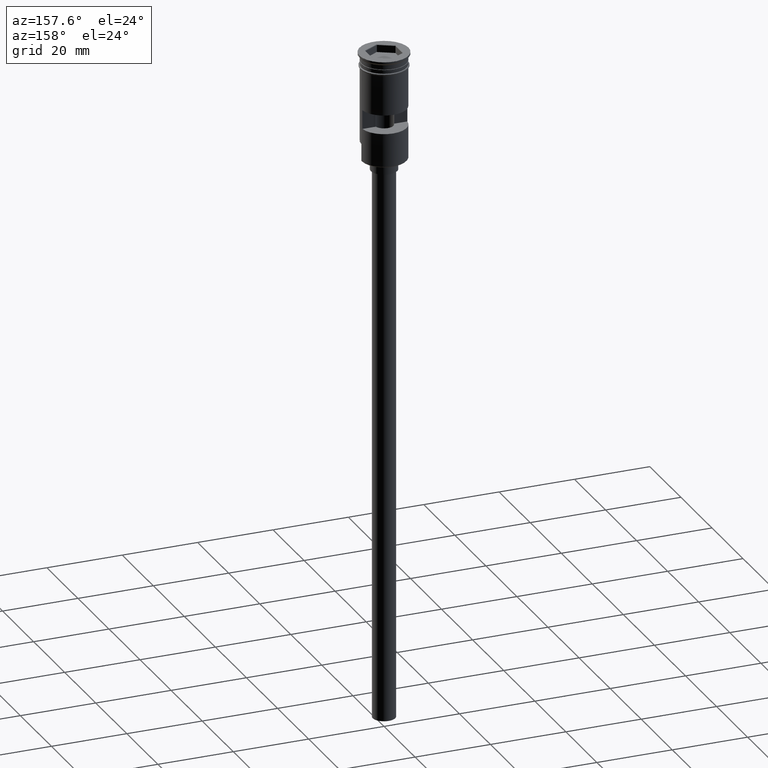
[diagram: clean part render]
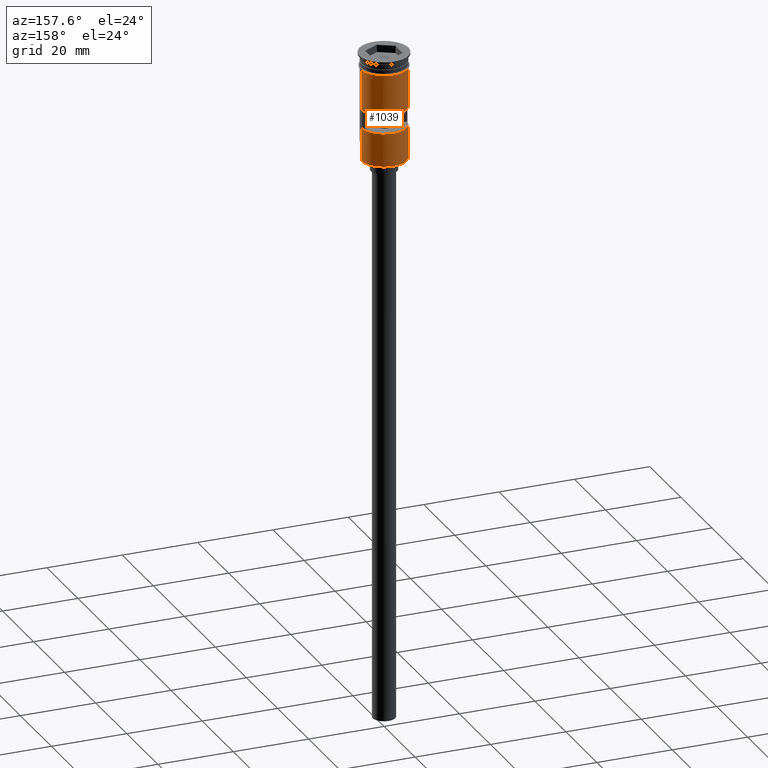
[diagram: same view with one face highlighted and labeled with its STEP entity id]
A machine part, auxiliary view. The second image highlights one B-rep face of the part: STEP entity #1039.
In plain terms, the highlighted cylindrical surface (edge-blend (fillet) strip) has radius 6 mm, axis along (-0, -0, 1).
Its self-contained STEP definition (entity closure, byte-faithful):
#1 = VERTEX_POINT ( 'NONE', #163 ) ;
#10 = CARTESIAN_POINT ( 'NONE',  ( 0.000000000000000000, 0.000000000000000000, -19.50000000000000355 ) ) ;
#31 = EDGE_CURVE ( 'NONE', #1209, #1, #1493, .T. ) ;
#112 = VERTEX_POINT ( 'NONE', #433 ) ;
#127 = AXIS2_PLACEMENT_3D ( 'NONE', #10, #493, #364 ) ;
#163 = CARTESIAN_POINT ( 'NONE',  ( 6.000000000000000000, 0.000000000000000000, -3.799999999999998490 ) ) ;
#195 = LINE ( 'NONE', #685, #448 ) ;
#241 = CARTESIAN_POINT ( 'NONE',  ( 5.999999999999997335, 7.347880794884115792E-16, -23.79999999999997939 ) ) ;
#243 = EDGE_CURVE ( 'NONE', #1, #731, #939, .T. ) ;
#246 = CIRCLE ( 'NONE', #920, 5.999999999999997335 ) ;
#254 = AXIS2_PLACEMENT_3D ( 'NONE', #283, #772, #870 ) ;
#282 = DIRECTION ( 'NONE',  ( -0.000000000000000000, -0.000000000000000000, 1.000000000000000000 ) ) ;
#283 = CARTESIAN_POINT ( 'NONE',  ( 0.000000000000000000, 0.000000000000000000, -14.49999999999999822 ) ) ;
#296 = CARTESIAN_POINT ( 'NONE',  ( -5.969924622639716461, 0.5999999999999999778, -14.49999999999999822 ) ) ;
#301 = AXIS2_PLACEMENT_3D ( 'NONE', #1455, #610, #343 ) ;
#306 = CIRCLE ( 'NONE', #254, 5.999999999999997335 ) ;
#326 = VECTOR ( 'NONE', #1568, 1000.000000000000000 ) ;
#343 = DIRECTION ( 'NONE',  ( 1.000000000000000000, 0.000000000000000000, 0.000000000000000000 ) ) ;
#353 = FACE_OUTER_BOUND ( 'NONE', #1344, .T. ) ;
#358 = CARTESIAN_POINT ( 'NONE',  ( -5.999999999999994671, 0.000000000000000000, -28.50000000000000000 ) ) ;
#364 = DIRECTION ( 'NONE',  ( -1.000000000000000000, 0.000000000000000000, 0.000000000000000000 ) ) ;
#391 = LINE ( 'NONE', #887, #929 ) ;
#414 = ORIENTED_EDGE ( 'NONE', *, *, #875, .T. ) ;
#418 = ORIENTED_EDGE ( 'NONE', *, *, #1543, .F. ) ;
#433 = CARTESIAN_POINT ( 'NONE',  ( -5.999999999999994671, 0.000000000000000000, -28.29999999999999716 ) ) ;
#437 = CARTESIAN_POINT ( 'NONE',  ( -6.000000000000000000, 7.347880794884119736E-16, -3.799999999999998490 ) ) ;
#448 = VECTOR ( 'NONE', #1275, 1000.000000000000000 ) ;
#493 = DIRECTION ( 'NONE',  ( 0.000000000000000000, 0.000000000000000000, 1.000000000000000000 ) ) ;
#523 = EDGE_CURVE ( 'NONE', #1326, #731, #1518, .T. ) ;
#528 = VERTEX_POINT ( 'NONE', #560 ) ;
#535 = EDGE_CURVE ( 'NONE', #1427, #1094, #195, .T. ) ;
#548 = DIRECTION ( 'NONE',  ( -1.000000000000000000, 0.000000000000000000, 0.000000000000000000 ) ) ;
#560 = CARTESIAN_POINT ( 'NONE',  ( 5.999999999999994671, 7.347880794884112834E-16, -28.29999999999999716 ) ) ;
#561 = CARTESIAN_POINT ( 'NONE',  ( -5.969924622639716461, 0.5999999999999997558, -19.50000000000000355 ) ) ;
#610 = DIRECTION ( 'NONE',  ( -0.000000000000000000, -0.000000000000000000, 1.000000000000000000 ) ) ;
#640 = DIRECTION ( 'NONE',  ( -0.000000000000000000, -0.000000000000000000, 1.000000000000000000 ) ) ;
#661 = CIRCLE ( 'NONE', #127, 5.999999999999997335 ) ;
#665 = CARTESIAN_POINT ( 'NONE',  ( 5.969924622639712908, 0.5999999999999999778, -19.50000000000000355 ) ) ;
#669 = ORIENTED_EDGE ( 'NONE', *, *, #31, .F. ) ;
#685 = CARTESIAN_POINT ( 'NONE',  ( -5.969924622639716461, 0.5999999999999997558, 0.000000000000000000 ) ) ;
#731 = VERTEX_POINT ( 'NONE', #437 ) ;
#754 = CARTESIAN_POINT ( 'NONE',  ( 5.999999999999997335, 0.000000000000000000, 0.000000000000000000 ) ) ;
#762 = DIRECTION ( 'NONE',  ( 1.000000000000000000, 0.000000000000000000, 0.000000000000000000 ) ) ;
#772 = DIRECTION ( 'NONE',  ( -0.000000000000000000, -3.212450881438533227E-16, -1.000000000000000000 ) ) ;
#806 = CARTESIAN_POINT ( 'NONE',  ( -5.999999999999997335, 7.347880794884116778E-16, 0.000000000000000000 ) ) ;
#823 = DIRECTION ( 'NONE',  ( 0.000000000000000000, 0.000000000000000000, 1.000000000000000000 ) ) ;
#870 = DIRECTION ( 'NONE',  ( 0.000000000000000000, -1.000000000000000000, 2.891205793294679805E-16 ) ) ;
#875 = EDGE_CURVE ( 'NONE', #528, #112, #246, .T. ) ;
#887 = CARTESIAN_POINT ( 'NONE',  ( 5.999999999999994671, 7.347880794884112834E-16, -28.50000000000000000 ) ) ;
#920 = AXIS2_PLACEMENT_3D ( 'NONE', #1412, #823, #548 ) ;
#929 = VECTOR ( 'NONE', #282, 1000.000000000000000 ) ;
#939 = CIRCLE ( 'NONE', #301, 6.000000000000000000 ) ;
#956 = ORIENTED_EDGE ( 'NONE', *, *, #1241, .F. ) ;
#966 = FACE_BOUND ( 'NONE', #976, .T. ) ;
#976 = EDGE_LOOP ( 'NONE', ( #418, #956, #1418, #1567 ) ) ;
#1039 = ADVANCED_FACE ( 'NONE', ( #966, #353 ), #1456, .T. ) ;
#1061 = LINE ( 'NONE', #1313, #326 ) ;
#1094 = VERTEX_POINT ( 'NONE', #296 ) ;
#1141 = VERTEX_POINT ( 'NONE', #1501 ) ;
#1146 = EDGE_CURVE ( 'NONE', #528, #1209, #391, .T. ) ;
#1161 = VERTEX_POINT ( 'NONE', #665 ) ;
#1172 = VECTOR ( 'NONE', #1303, 1000.000000000000000 ) ;
#1209 = VERTEX_POINT ( 'NONE', #241 ) ;
#1233 = DIRECTION ( 'NONE',  ( -0.000000000000000000, -0.000000000000000000, 1.000000000000000000 ) ) ;
#1241 = EDGE_CURVE ( 'NONE', #1094, #1141, #306, .T. ) ;
#1245 = ORIENTED_EDGE ( 'NONE', *, *, #1361, .T. ) ;
#1252 = CARTESIAN_POINT ( 'NONE',  ( 0.000000000000000000, 0.000000000000000000, 0.000000000000000000 ) ) ;
#1273 = EDGE_CURVE ( 'NONE', #1161, #1427, #661, .T. ) ;
#1275 = DIRECTION ( 'NONE',  ( -0.000000000000000000, -0.000000000000000000, 1.000000000000000000 ) ) ;
#1282 = ORIENTED_EDGE ( 'NONE', *, *, #243, .F. ) ;
#1295 = VECTOR ( 'NONE', #640, 1000.000000000000000 ) ;
#1303 = DIRECTION ( 'NONE',  ( -0.000000000000000000, -0.000000000000000000, 1.000000000000000000 ) ) ;
#1313 = CARTESIAN_POINT ( 'NONE',  ( 5.969924622639716461, 0.5999999999999997558, 0.000000000000000000 ) ) ;
#1326 = VERTEX_POINT ( 'NONE', #1589 ) ;
#1344 = EDGE_LOOP ( 'NONE', ( #1245, #1420, #1282, #669, #1487, #414 ) ) ;
#1361 = EDGE_CURVE ( 'NONE', #112, #1326, #1422, .T. ) ;
#1380 = AXIS2_PLACEMENT_3D ( 'NONE', #1252, #1233, #762 ) ;
#1412 = CARTESIAN_POINT ( 'NONE',  ( 0.000000000000000000, 0.000000000000000000, -28.29999999999999716 ) ) ;
#1418 = ORIENTED_EDGE ( 'NONE', *, *, #535, .F. ) ;
#1420 = ORIENTED_EDGE ( 'NONE', *, *, #523, .T. ) ;
#1422 = LINE ( 'NONE', #358, #1172 ) ;
#1427 = VERTEX_POINT ( 'NONE', #561 ) ;
#1455 = CARTESIAN_POINT ( 'NONE',  ( 0.000000000000000000, 0.000000000000000000, -3.799999999999998490 ) ) ;
#1456 = CYLINDRICAL_SURFACE ( 'NONE', #1380, 5.999999999999997335 ) ;
#1480 = VECTOR ( 'NONE', #1548, 1000.000000000000000 ) ;
#1487 = ORIENTED_EDGE ( 'NONE', *, *, #1146, .F. ) ;
#1493 = LINE ( 'NONE', #754, #1295 ) ;
#1501 = CARTESIAN_POINT ( 'NONE',  ( 5.969924622639712908, 0.5999999999999999778, -14.49999999999999822 ) ) ;
#1518 = LINE ( 'NONE', #806, #1480 ) ;
#1543 = EDGE_CURVE ( 'NONE', #1141, #1161, #1061, .T. ) ;
#1548 = DIRECTION ( 'NONE',  ( -0.000000000000000000, -0.000000000000000000, 1.000000000000000000 ) ) ;
#1567 = ORIENTED_EDGE ( 'NONE', *, *, #1273, .F. ) ;
#1568 = DIRECTION ( 'NONE',  ( 0.000000000000000000, 0.000000000000000000, -1.000000000000000000 ) ) ;
#1589 = CARTESIAN_POINT ( 'NONE',  ( -5.999999999999994671, 0.000000000000000000, -23.79999999999997939 ) ) ;